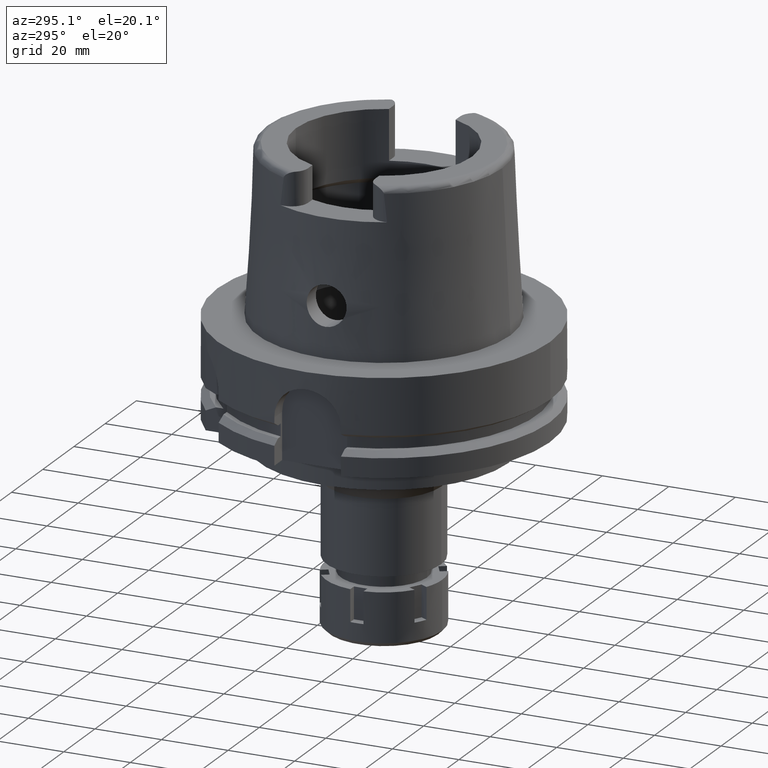
[diagram: clean part render]
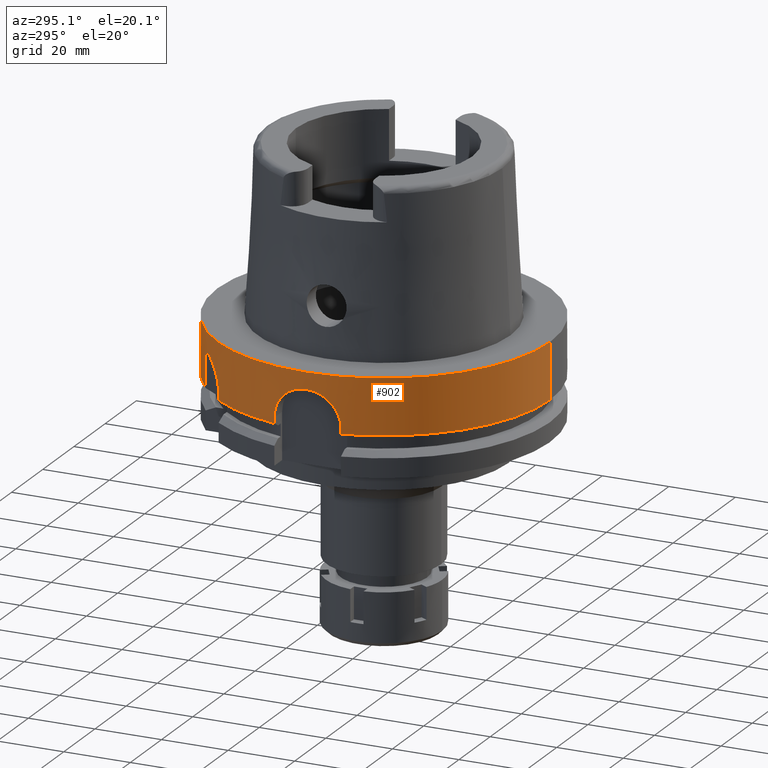
[diagram: same view with one face highlighted and labeled with its STEP entity id]
A machine part, auxiliary view. The second image highlights one B-rep face of the part: STEP entity #902.
In plain terms, the highlighted cylindrical surface (partial cylindrical patch) has radius 50 mm, axis along (0, 0, 1).
Its self-contained STEP definition (entity closure, byte-faithful):
#27 = CARTESIAN_POINT ( 'NONE',  ( -49.94994066468480298, -2.259794752817469110, -5.253209555805507414 ) ) ;
#40 = CIRCLE ( 'NONE', #1830, 49.99999999999997868 ) ;
#91 = B_SPLINE_CURVE_WITH_KNOTS ( 'NONE', 3,
 ( #3608, #4136, #884, #6012, #6041, #6071, #2746, #1283, #416, #5036, #5561, #1782, #6107, #1813, #5598, #3731, #1257, #382, #3179, #1350, #3697, #319, #3663, #2772, #2220, #1755, #4195, #3637, #1845, #5068, #1316, #2711, #4606, #2279, #5634, #1377, #3209 ),
 .UNSPECIFIED., .F., .F.,
 ( 4, 2, 2, 1, 1, 2, 2, 2, 2, 1, 1, 1, 2, 2, 2, 2, 1, 1, 1, 1, 2, 2, 4 ),
 ( 0.0000000000000000000, 0.1250000000000182077, 0.1875000000000273948, 0.2187500000000318079, 0.2343750000000340006, 0.2421875000000346667, 0.2500000000000353051, 0.3750000000000476841, 0.4375000000000541234, 0.4687500000000576761, 0.4843750000000592859, 0.4921875000000597300, 0.4960937500000605072, 0.5000000000000611733, 0.6250000000000721645, 0.6875000000000777156, 0.7187500000000808242, 0.7343750000000823785, 0.7421875000000835998, 0.7460937500000833777, 0.7480468750000828226, 0.7500000000000823785, 1.000000000000000000 ),
 .UNSPECIFIED. ) ;
#103 = LINE ( 'NONE', #4758, #837 ) ;
#104 = VERTEX_POINT ( 'NONE', #4128 ) ;
#215 = ORIENTED_EDGE ( 'NONE', *, *, #4849, .F. ) ;
#292 = VERTEX_POINT ( 'NONE', #1522 ) ;
#319 = CARTESIAN_POINT ( 'NONE',  ( -37.31401178714319400, 33.28160900363271679, -8.939674617493748698 ) ) ;
#335 = ORIENTED_EDGE ( 'NONE', *, *, #2045, .F. ) ;
#371 = CARTESIAN_POINT ( 'NONE',  ( -49.62881521159336273, -6.086586877219529512, -7.058779781998447689 ) ) ;
#382 = CARTESIAN_POINT ( 'NONE',  ( -37.41676183570157121, 33.16611033150237375, -9.109386954884167054 ) ) ;
#389 = CARTESIAN_POINT ( 'NONE',  ( -48.98979485565999425, 10.00000000000000000, -15.00000000000000000 ) ) ;
#400 = CARTESIAN_POINT ( 'NONE',  ( -49.09036018454670369, 9.497439763984472094, -11.80158618427494410 ) ) ;
#416 = CARTESIAN_POINT ( 'NONE',  ( -38.49469863582766038, 31.90860436877341400, -11.80739358197351407 ) ) ;
#432 = CARTESIAN_POINT ( 'NONE',  ( -49.56392084514535412, 6.594210339440433444, -7.474928745218221593 ) ) ;
#440 = DIRECTION ( 'NONE',  ( 0.0000000000000000000, 0.0000000000000000000, 1.000000000000000000 ) ) ;
#466 = CARTESIAN_POINT ( 'NONE',  ( -49.62899891494354421, 6.085090487835675077, -7.057631952576961076 ) ) ;
#494 = CARTESIAN_POINT ( 'NONE',  ( -49.98420942202844941, -1.297367244915107687, -5.079122034242771200 ) ) ;
#497 = ORIENTED_EDGE ( 'NONE', *, *, #4817, .T. ) ;
#519 = ORIENTED_EDGE ( 'NONE', *, *, #1860, .T. ) ;
#535 = AXIS2_PLACEMENT_3D ( 'NONE', #4946, #3584, #4484 ) ;
#616 = AXIS2_PLACEMENT_3D ( 'NONE', #968, #440, #1903 ) ;
#690 = VERTEX_POINT ( 'NONE', #1616 ) ;
#768 = LINE ( 'NONE', #3983, #812 ) ;
#805 = CARTESIAN_POINT ( 'NONE',  ( -31.50000000000000000, 38.82975663071000128, -5.000000000003000267 ) ) ;
#812 = VECTOR ( 'NONE', #5510, 1000.000000000000000 ) ;
#829 = CARTESIAN_POINT ( 'NONE',  ( 0.0000000000000000000, -50.00000000000000000, 1.752672081541999838E-13 ) ) ;
#837 = VECTOR ( 'NONE', #4326, 1000.000000000000000 ) ;
#842 = CARTESIAN_POINT ( 'NONE',  ( -49.56373229003720837, -6.595625868857654339, -7.476172084618819547 ) ) ;
#872 = CARTESIAN_POINT ( 'NONE',  ( -48.98979485565999425, 10.00000000000000000, -15.00000000000000000 ) ) ;
#880 = CARTESIAN_POINT ( 'NONE',  ( -48.98979485565999425, -10.00000000000000000, -16.75240473580999989 ) ) ;
#884 = CARTESIAN_POINT ( 'NONE',  ( -38.79935080061787289, 31.53769345193066442, -13.63626531208474724 ) ) ;
#902 = ADVANCED_FACE ( 'NONE', ( #3099 ), #4460, .T. ) ;
#968 = CARTESIAN_POINT ( 'NONE',  ( 0.0000000000000000000, 0.0000000000000000000, -16.75240473580999989 ) ) ;
#974 = DIRECTION ( 'NONE',  ( 0.0000000000000000000, 0.0000000000000000000, -1.000000000000000000 ) ) ;
#1049 = DIRECTION ( 'NONE',  ( 3.166955095344913800E-07, 3.903884141554897929E-07, 0.9999999999998735456 ) ) ;
#1143 = ORIENTED_EDGE ( 'NONE', *, *, #3703, .T. ) ;
#1201 = VERTEX_POINT ( 'NONE', #3195 ) ;
#1257 = CARTESIAN_POINT ( 'NONE',  ( -37.52477946056662006, 33.04402440038983002, -9.296024440278719325 ) ) ;
#1283 = CARTESIAN_POINT ( 'NONE',  ( -38.51643405343256177, 31.88237588450021320, -11.89681358686715740 ) ) ;
#1316 = CARTESIAN_POINT ( 'NONE',  ( -35.17767111237466082, 35.53213783479901622, -6.612863908574678540 ) ) ;
#1337 = CARTESIAN_POINT ( 'NONE',  ( -48.98979485566341907, -10.00000000000061995, -14.34992636891092666 ) ) ;
#1350 = CARTESIAN_POINT ( 'NONE',  ( -37.33738355798608666, 33.25538657312016255, -8.977692764714348073 ) ) ;
#1367 = CARTESIAN_POINT ( 'NONE',  ( -49.36390707118801657, -7.958783023983241556, -8.909500093796756559 ) ) ;
#1377 = CARTESIAN_POINT ( 'NONE',  ( -32.91545984274686987, 37.68148816559238412, -5.318168387792706397 ) ) ;
#1430 = CARTESIAN_POINT ( 'NONE',  ( -49.93465246831761561, 2.574515594304664035, -5.331509912841217336 ) ) ;
#1459 = CARTESIAN_POINT ( 'NONE',  ( -49.72224263843126124, -5.270247532519865885, -6.495087439147432029 ) ) ;
#1507 = CARTESIAN_POINT ( 'NONE',  ( 0.0000000000000000000, 0.0000000000000000000, -16.75240473580999989 ) ) ;
#1522 = CARTESIAN_POINT ( 'NONE',  ( -38.82975730067999365, 31.49999917413000361, -16.75240773889999701 ) ) ;
#1616 = CARTESIAN_POINT ( 'NONE',  ( -38.82975663071000128, 31.50000000000000000, -14.63689785921000031 ) ) ;
#1621 = EDGE_CURVE ( 'NONE', #292, #1201, #5288, .T. ) ;
#1669 = CARTESIAN_POINT ( 'NONE',  ( 0.0000000000000000000, 50.00000000000000000, 1.752672081541999838E-13 ) ) ;
#1723 = CARTESIAN_POINT ( 'NONE',  ( 0.0000000000000000000, -50.00000000000000000, 3.126388037344000570E-13 ) ) ;
#1755 = CARTESIAN_POINT ( 'NONE',  ( -35.96278945922203008, 34.73848146068956311, -7.264243539598007615 ) ) ;
#1782 = CARTESIAN_POINT ( 'NONE',  ( -38.33757112677400869, 32.09787203920820531, -11.19154613157614975 ) ) ;
#1801 = CARTESIAN_POINT ( 'NONE',  ( -49.09278989258839943, -9.481937093884811318, -11.80611569221511559 ) ) ;
#1813 = CARTESIAN_POINT ( 'NONE',  ( -37.88732984439295848, 32.62788119483960969, -10.01611322493112155 ) ) ;
#1823 = EDGE_CURVE ( 'NONE', #5422, #5934, #3189, .T. ) ;
#1830 = AXIS2_PLACEMENT_3D ( 'NONE', #1507, #5708, #4384 ) ;
#1833 = CARTESIAN_POINT ( 'NONE',  ( -49.97485841623518610, -1.617643659042722337, -5.126307811638905143 ) ) ;
#1845 = CARTESIAN_POINT ( 'NONE',  ( -35.32041700614247048, 35.39038466401050442, -6.719788728558004465 ) ) ;
#1860 = EDGE_CURVE ( 'NONE', #3505, #5934, #40, .T. ) ;
#1867 = CARTESIAN_POINT ( 'NONE',  ( -49.24041324777747519, -8.690181341251232539, -10.00850486959623176 ) ) ;
#1896 = CARTESIAN_POINT ( 'NONE',  ( -49.00274337469999608, -9.937182510806511715, -13.70561547083139331 ) ) ;
#1903 = DIRECTION ( 'NONE',  ( 0.0000000000000000000, 1.000000000000000000, 0.0000000000000000000 ) ) ;
#1923 = CARTESIAN_POINT ( 'NONE',  ( -49.87788521341418146, -3.505694118459035558, -5.628880875401277351 ) ) ;
#2002 = EDGE_CURVE ( 'NONE', #5422, #4005, #5699, .T. ) ;
#2045 = EDGE_CURVE ( 'NONE', #3505, #5595, #103, .T. ) ;
#2152 = CARTESIAN_POINT ( 'NONE',  ( -31.50000000000000000, 38.82975663071000128, -5.000000000003000267 ) ) ;
#2203 = CARTESIAN_POINT ( 'NONE',  ( 0.0000000000000000000, 0.0000000000000000000, -88.59999999999999432 ) ) ;
#2220 = CARTESIAN_POINT ( 'NONE',  ( -36.15391020469104433, 34.53934202217831739, -7.451875179116710157 ) ) ;
#2268 = CARTESIAN_POINT ( 'NONE',  ( -49.43022059887681507, -7.541711222667776937, -8.400035818733632809 ) ) ;
#2279 = CARTESIAN_POINT ( 'NONE',  ( -35.13739764012134970, 35.57195551990454163, -6.583427736125374352 ) ) ;
#2295 = CARTESIAN_POINT ( 'NONE',  ( -49.18453679201154216, 8.997008707026115104, -10.58560031123585965 ) ) ;
#2331 = CARTESIAN_POINT ( 'NONE',  ( -49.99999360500559931, -0.3269239678294739715, -5.000048098238591976 ) ) ;
#2363 = CARTESIAN_POINT ( 'NONE',  ( -49.87786566908135200, 3.505808458107193104, -5.628992301551426714 ) ) ;
#2711 = CARTESIAN_POINT ( 'NONE',  ( -35.15707741271366871, 35.55250571262553194, -6.597782046363439790 ) ) ;
#2734 = CARTESIAN_POINT ( 'NONE',  ( -49.80582381222812671, -4.411840447473320381, -6.019770980953928152 ) ) ;
#2746 = CARTESIAN_POINT ( 'NONE',  ( -38.56465579959431267, 31.82407433585522583, -12.10638155984629272 ) ) ;
#2761 = CARTESIAN_POINT ( 'NONE',  ( -49.83132479518987168, -4.114898998883623094, -5.879966185470739681 ) ) ;
#2772 = CARTESIAN_POINT ( 'NONE',  ( -36.69780623800329522, 33.96397150649804075, -8.040723503130806193 ) ) ;
#2791 = CARTESIAN_POINT ( 'NONE',  ( -49.05327106856116615, 9.684690085528719905, -12.42418889650314107 ) ) ;
#2826 = CARTESIAN_POINT ( 'NONE',  ( -49.36522353530785523, 7.944764735771466135, -8.917965014434020787 ) ) ;
#2960 = EDGE_CURVE ( 'NONE', #292, #690, #3280, .T. ) ;
#3017 = AXIS2_PLACEMENT_3D ( 'NONE', #4379, #974, #5197 ) ;
#3087 = ORIENTED_EDGE ( 'NONE', *, *, #5447, .F. ) ;
#3099 = FACE_OUTER_BOUND ( 'NONE', #6031, .T. ) ;
#3179 = CARTESIAN_POINT ( 'NONE',  ( -37.36139999547052071, 33.22841598929223039, -9.017051860114534634 ) ) ;
#3189 = LINE ( 'NONE', #829, #5590 ) ;
#3191 = CARTESIAN_POINT ( 'NONE',  ( -38.82975730067999365, 31.49999917413000361, -16.75240773889999701 ) ) ;
#3195 = CARTESIAN_POINT ( 'NONE',  ( -48.98979485565999425, 10.00000000000000000, -16.75240473580999989 ) ) ;
#3209 = CARTESIAN_POINT ( 'NONE',  ( -31.50000000000000000, 38.82975663071000128, -5.000000000003000267 ) ) ;
#3233 = CARTESIAN_POINT ( 'NONE',  ( -48.98979485566341907, 10.00000000000068212, -14.67477384672370100 ) ) ;
#3259 = CARTESIAN_POINT ( 'NONE',  ( -50.00001276120485727, 0.6509093675188895034, -4.999956924247983991 ) ) ;
#3278 = LINE ( 'NONE', #389, #4281 ) ;
#3280 = LINE ( 'NONE', #3191, #3470 ) ;
#3288 = CARTESIAN_POINT ( 'NONE',  ( -49.89857304296576501, 3.198445865227089069, -5.519613993474073332 ) ) ;
#3325 = CARTESIAN_POINT ( 'NONE',  ( -49.00580010131365327, 9.921319867194132058, -13.70617931160536962 ) ) ;
#3415 = EDGE_CURVE ( 'NONE', #104, #4017, #5262, .T. ) ;
#3470 = VECTOR ( 'NONE', #1049, 1000.000000000000227 ) ;
#3502 = CARTESIAN_POINT ( 'NONE',  ( 0.0000000000000000000, -50.00000000000000000, -16.75240473580999989 ) ) ;
#3505 = VERTEX_POINT ( 'NONE', #880 ) ;
#3560 = B_SPLINE_CURVE_WITH_KNOTS ( 'NONE', 3,
 ( #872, #3233, #5685, #3325, #5213, #2791, #400, #2295, #5121, #5717, #2826, #4251, #5089, #4683, #432, #466, #5180, #3749, #4280, #5651, #6093, #2363, #3288, #1430, #4746, #4628, #3259, #2331, #5149, #494, #1833, #27, #3721, #4217, #1923, #2761, #2734, #6126, #1459, #4718, #371, #842, #5624, #2268, #1367, #1867, #4152, #6059, #1801, #3687, #5584, #1896, #1337, #4338 ),
 .UNSPECIFIED., .F., .F.,
 ( 4, 2, 2, 2, 2, 2, 2, 2, 2, 2, 2, 2, 2, 2, 2, 2, 2, 2, 2, 2, 2, 2, 2, 2, 2, 2, 4 ),
 ( 0.0000000000000000000, 0.03125000000000011102, 0.06250000000000022204, 0.1250000000000004163, 0.1875000000000006106, 0.2187500000000007216, 0.2500000000000008327, 0.2812500000000008327, 0.3125000000000008327, 0.3437500000000008327, 0.3750000000000008327, 0.4062500000000007772, 0.4375000000000007216, 0.5000000000000005551, 0.5312500000000005551, 0.5625000000000005551, 0.5937500000000005551, 0.6250000000000005551, 0.6562500000000005551, 0.6875000000000005551, 0.7187500000000005551, 0.7500000000000005551, 0.8125000000000004441, 0.8750000000000003331, 0.9062500000000002220, 0.9375000000000001110, 1.000000000000000000 ),
 .UNSPECIFIED. ) ;
#3584 = DIRECTION ( 'NONE',  ( 0.0000000000000000000, 0.0000000000000000000, 1.000000000000000000 ) ) ;
#3608 = CARTESIAN_POINT ( 'NONE',  ( -38.82975663071000128, 31.50000000000000000, -14.63689785921000031 ) ) ;
#3637 = CARTESIAN_POINT ( 'NONE',  ( -35.50698485420880957, 35.20361670884168603, -6.865942756004718817 ) ) ;
#3652 = VERTEX_POINT ( 'NONE', #3809 ) ;
#3663 = CARTESIAN_POINT ( 'NONE',  ( -37.02111532275172578, 33.60982154771593144, -8.467976012028287869 ) ) ;
#3687 = CARTESIAN_POINT ( 'NONE',  ( -49.05614964883081797, -9.669712101284867245, -12.42999805995558305 ) ) ;
#3697 = CARTESIAN_POINT ( 'NONE',  ( -37.32130816976796694, 33.27342628294761084, -8.951500974369345442 ) ) ;
#3703 = EDGE_CURVE ( 'NONE', #3652, #5595, #3560, .T. ) ;
#3721 = CARTESIAN_POINT ( 'NONE',  ( -49.93455893158446912, -2.576326564035913869, -5.331990395739981459 ) ) ;
#3731 = CARTESIAN_POINT ( 'NONE',  ( -37.61272704371310738, 32.94378549837600190, -9.459297390907737579 ) ) ;
#3738 = DIRECTION ( 'NONE',  ( -4.014125812537999910E-13, -2.635537149646000036E-14, -1.000000000000000000 ) ) ;
#3749 = CARTESIAN_POINT ( 'NONE',  ( -49.72222128286315979, 5.270358358214859429, -6.495232976551800874 ) ) ;
#3809 = CARTESIAN_POINT ( 'NONE',  ( -48.98979485565999425, 10.00000000000000000, -15.00000000000000000 ) ) ;
#3983 = CARTESIAN_POINT ( 'NONE',  ( 0.0000000000000000000, 50.00000000000000000, 1.752672081541999838E-13 ) ) ;
#3988 = ORIENTED_EDGE ( 'NONE', *, *, #3415, .T. ) ;
#4005 = VERTEX_POINT ( 'NONE', #1669 ) ;
#4017 = VERTEX_POINT ( 'NONE', #4023 ) ;
#4023 = CARTESIAN_POINT ( 'NONE',  ( -31.50000355958999876, 38.82975374304999860, -16.75239179145000179 ) ) ;
#4112 = ORIENTED_EDGE ( 'NONE', *, *, #1621, .T. ) ;
#4128 = CARTESIAN_POINT ( 'NONE',  ( 1.065814103639999922E-14, 50.00000000000000000, -16.75240473580999989 ) ) ;
#4136 = CARTESIAN_POINT ( 'NONE',  ( -38.82975663071001549, 31.50000000000000000, -14.13607111859741394 ) ) ;
#4152 = CARTESIAN_POINT ( 'NONE',  ( -49.18424439192180131, -8.998583427525336020, -10.58912033888665505 ) ) ;
#4195 = CARTESIAN_POINT ( 'NONE',  ( -35.66137523947111987, 35.04694604070001418, -6.996437417139394377 ) ) ;
#4208 = DIRECTION ( 'NONE',  ( 0.0000000000000000000, 2.969006079282000197E-14, -1.000000000000000000 ) ) ;
#4217 = CARTESIAN_POINT ( 'NONE',  ( -49.89845962713046390, -3.200212664194285850, -5.520212011311250500 ) ) ;
#4251 = CARTESIAN_POINT ( 'NONE',  ( -49.43056103556367020, 7.527563822850312114, -8.408713046767697818 ) ) ;
#4280 = CARTESIAN_POINT ( 'NONE',  ( -49.75134977747793386, 4.988750540692706181, -6.326968285705540040 ) ) ;
#4281 = VECTOR ( 'NONE', #3738, 1000.000000000000000 ) ;
#4326 = DIRECTION ( 'NONE',  ( 3.933032361779000221E-13, -2.534170336197999844E-14, 1.000000000000000000 ) ) ;
#4338 = CARTESIAN_POINT ( 'NONE',  ( -48.98979485565999425, -10.00000000000000000, -15.00000000000000000 ) ) ;
#4379 = CARTESIAN_POINT ( 'NONE',  ( 0.0000000000000000000, 0.0000000000000000000, 3.126388037344000570E-13 ) ) ;
#4384 = DIRECTION ( 'NONE',  ( -0.9797958971132723072, -0.1999999999999946265, 0.0000000000000000000 ) ) ;
#4460 = CYLINDRICAL_SURFACE ( 'NONE', #5581, 50.00000000000000000 ) ;
#4484 = DIRECTION ( 'NONE',  ( -0.7765951326141738997, 0.6299999999999789102, 0.0000000000000000000 ) ) ;
#4606 = CARTESIAN_POINT ( 'NONE',  ( -35.14332909588038234, 35.56609536790983839, -6.587745905869172525 ) ) ;
#4611 = ORIENTED_EDGE ( 'NONE', *, *, #2960, .F. ) ;
#4628 = CARTESIAN_POINT ( 'NONE',  ( -49.98727337604294263, 1.297072131884469570, -5.063079227123298942 ) ) ;
#4683 = CARTESIAN_POINT ( 'NONE',  ( -49.53074240762869351, 6.838214994895060350, -7.696049756172459233 ) ) ;
#4718 = CARTESIAN_POINT ( 'NONE',  ( -49.66071698589643546, -5.821521321421013972, -6.862562852904170896 ) ) ;
#4746 = CARTESIAN_POINT ( 'NONE',  ( -49.95007296249472972, 2.256697800569569257, -5.252537339674993255 ) ) ;
#4758 = CARTESIAN_POINT ( 'NONE',  ( -48.98979485565999425, -10.00000000000000000, -16.75240473580999989 ) ) ;
#4817 = EDGE_CURVE ( 'NONE', #4005, #104, #768, .T. ) ;
#4827 = CARTESIAN_POINT ( 'NONE',  ( -48.98979485565999425, -10.00000000000000000, -15.00000000000000000 ) ) ;
#4849 = EDGE_CURVE ( 'NONE', #3652, #1201, #3278, .T. ) ;
#4946 = CARTESIAN_POINT ( 'NONE',  ( 0.0000000000000000000, 0.0000000000000000000, -16.75240473580999989 ) ) ;
#4989 = DIRECTION ( 'NONE',  ( 0.0000000000000000000, 0.0000000000000000000, 1.000000000000000000 ) ) ;
#5036 = CARTESIAN_POINT ( 'NONE',  ( -38.47997081187678248, 31.92636507863463180, -11.74787051388670456 ) ) ;
#5052 = DIRECTION ( 'NONE',  ( 0.0000000000000000000, 1.000000000000000000, 0.0000000000000000000 ) ) ;
#5068 = CARTESIAN_POINT ( 'NONE',  ( -35.22552164912754336, 35.48472957733930144, -6.648248272940018744 ) ) ;
#5089 = CARTESIAN_POINT ( 'NONE',  ( -49.46402646853832152, 7.305184000900602825, -8.163237007348122631 ) ) ;
#5121 = CARTESIAN_POINT ( 'NONE',  ( -49.24057617454467817, 8.689264381284512950, -10.00689432263757261 ) ) ;
#5149 = CARTESIAN_POINT ( 'NONE',  ( -49.99680002002526891, -0.6514146689907366339, -5.015875041971508352 ) ) ;
#5180 = CARTESIAN_POINT ( 'NONE',  ( -49.66109665971371356, 5.818199470677054563, -6.860273031121217002 ) ) ;
#5197 = DIRECTION ( 'NONE',  ( 0.0000000000000000000, -1.000000000000000000, 0.0000000000000000000 ) ) ;
#5213 = CARTESIAN_POINT ( 'NONE',  ( -49.01532077360067774, 9.874334691798127395, -13.38637230121983279 ) ) ;
#5262 = CIRCLE ( 'NONE', #616, 50.00000000000000000 ) ;
#5288 = CIRCLE ( 'NONE', #535, 50.00000000000000711 ) ;
#5347 = DIRECTION ( 'NONE',  ( -3.028823767049074487E-07, -2.457085509676059455E-07, -0.9999999999999239497 ) ) ;
#5422 = VERTEX_POINT ( 'NONE', #1723 ) ;
#5434 = ORIENTED_EDGE ( 'NONE', *, *, #2002, .T. ) ;
#5447 = EDGE_CURVE ( 'NONE', #690, #6121, #91, .T. ) ;
#5510 = DIRECTION ( 'NONE',  ( 0.0000000000000000000, -2.969006079282000197E-14, -1.000000000000000000 ) ) ;
#5561 = CARTESIAN_POINT ( 'NONE',  ( -38.47284389103141677, 31.93495449335665626, -11.71954273252250900 ) ) ;
#5581 = AXIS2_PLACEMENT_3D ( 'NONE', #2203, #4989, #5052 ) ;
#5584 = CARTESIAN_POINT ( 'NONE',  ( -49.04050012748191989, -9.748510700173220300, -12.74779322322638997 ) ) ;
#5590 = VECTOR ( 'NONE', #4208, 1000.000000000000000 ) ;
#5595 = VERTEX_POINT ( 'NONE', #4827 ) ;
#5598 = CARTESIAN_POINT ( 'NONE',  ( -37.78243694006996378, 32.74938200146292644, -9.790033153821818601 ) ) ;
#5624 = CARTESIAN_POINT ( 'NONE',  ( -49.53067426088643543, -6.838737925735863143, -7.696485171463537611 ) ) ;
#5634 = CARTESIAN_POINT ( 'NONE',  ( -34.12531051056623710, 36.57120009172674457, -5.849377820200112765 ) ) ;
#5651 = CARTESIAN_POINT ( 'NONE',  ( -49.80597247480898915, 4.410163543088208904, -6.018949576889937703 ) ) ;
#5685 = CARTESIAN_POINT ( 'NONE',  ( -48.99301409864090573, 9.984267675071087922, -14.35096447838950695 ) ) ;
#5699 = CIRCLE ( 'NONE', #3017, 50.00000000000000000 ) ;
#5708 = DIRECTION ( 'NONE',  ( 0.0000000000000000000, 0.0000000000000000000, 1.000000000000000000 ) ) ;
#5717 = CARTESIAN_POINT ( 'NONE',  ( -49.33322137804878338, 8.140496473599078797, -9.182651765820171619 ) ) ;
#5735 = EDGE_CURVE ( 'NONE', #6121, #4017, #5913, .T. ) ;
#5806 = ORIENTED_EDGE ( 'NONE', *, *, #1823, .F. ) ;
#5900 = VECTOR ( 'NONE', #5347, 1000.000000000000114 ) ;
#5913 = LINE ( 'NONE', #2152, #5900 ) ;
#5934 = VERTEX_POINT ( 'NONE', #3502 ) ;
#5953 = ORIENTED_EDGE ( 'NONE', *, *, #5735, .F. ) ;
#6012 = CARTESIAN_POINT ( 'NONE',  ( -38.70813331034150906, 31.64946695243070351, -12.89643729034810349 ) ) ;
#6031 = EDGE_LOOP ( 'NONE', ( #3087, #4611, #4112, #215, #1143, #335, #519, #5806, #5434, #497, #3988, #5953 ) ) ;
#6041 = CARTESIAN_POINT ( 'NONE',  ( -38.67012602272635746, 31.69591731848126059, -12.65147181585122915 ) ) ;
#6059 = CARTESIAN_POINT ( 'NONE',  ( -49.11383813249523911, -9.372673253755635869, -11.49857013436666442 ) ) ;
#6071 = CARTESIAN_POINT ( 'NONE',  ( -38.60171290501906327, 31.77910421428803289, -12.28749930356790010 ) ) ;
#6093 = CARTESIAN_POINT ( 'NONE',  ( -49.83161392523056321, 4.111256529898119183, -5.878401453227955820 ) ) ;
#6107 = CARTESIAN_POINT ( 'NONE',  ( -38.17726747761729911, 32.28919480642500872, -10.70934918311615291 ) ) ;
#6121 = VERTEX_POINT ( 'NONE', #805 ) ;
#6126 = CARTESIAN_POINT ( 'NONE',  ( -49.75118674890808279, -4.990374617595827900, -6.327904852817182402 ) ) ;